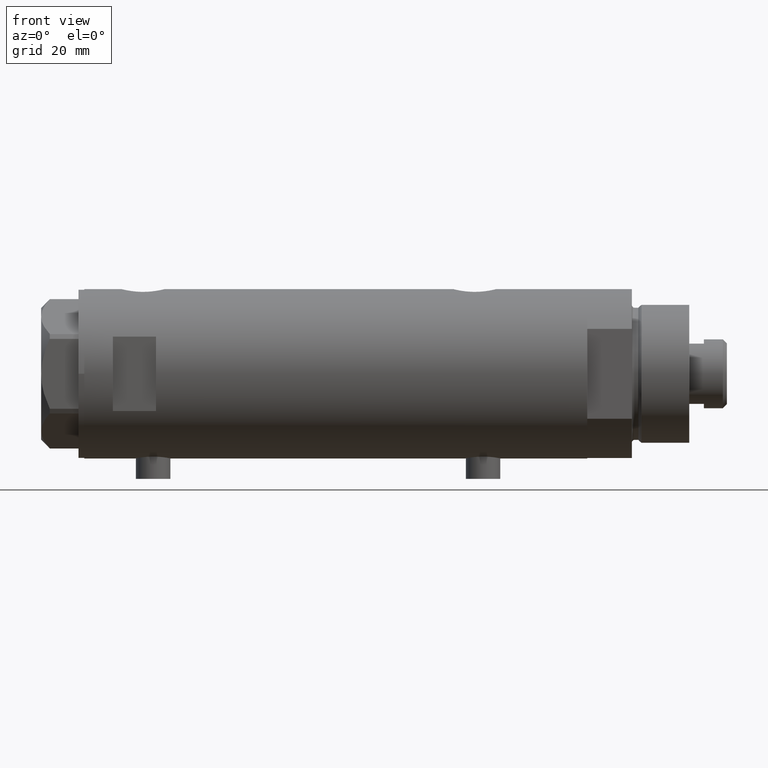
[diagram: clean part render]
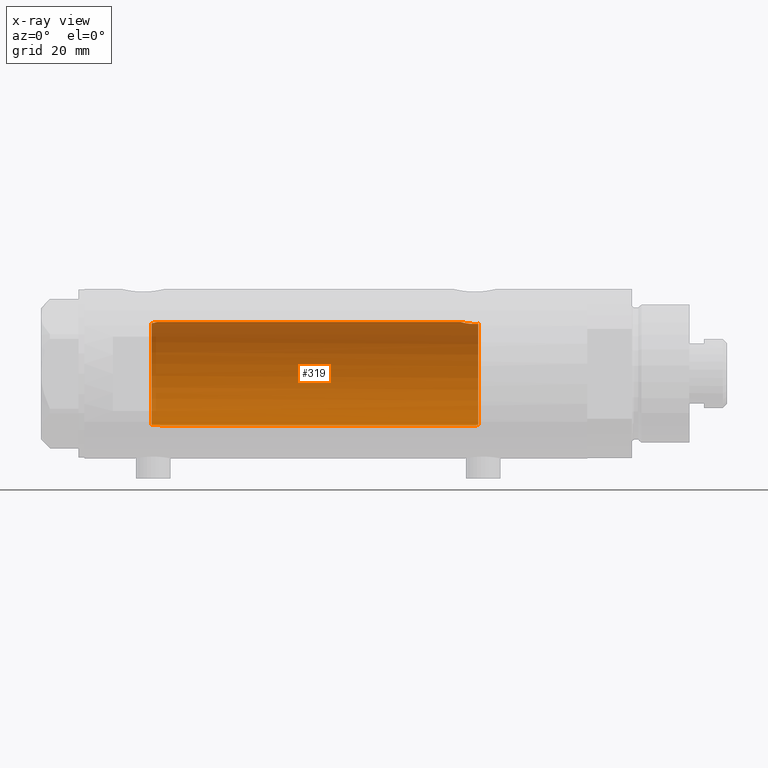
[diagram: x-ray — body ghosted, one internal face saturated and labeled with its STEP entity id]
A machine part, front view, then the same camera in x-ray: the body is ghosted and one INTERNAL B-rep face — a face not visible from any outside direction — is saturated and labeled: STEP entity #319.
In plain terms, the highlighted cylindrical surface (partial cylindrical patch) has radius 18 mm, axis along (1, 0, -0).
Its self-contained STEP definition (entity closure, byte-faithful):
#37 = CARTESIAN_POINT ( 'NONE',  ( 17.85236636886078543, 2.306694554785105211, -44.11264586133010113 ) ) ;
#91 = CARTESIAN_POINT ( 'NONE',  ( 17.68656644271517919, 3.347025706529862088, -44.86453774950911821 ) ) ;
#101 = DIRECTION ( 'NONE',  ( -1.000000000000000000, 0.000000000000000000, 0.000000000000000000 ) ) ;
#106 = ORIENTED_EDGE ( 'NONE', *, *, #968, .T. ) ;
#145 = CARTESIAN_POINT ( 'NONE',  ( 17.34671983132639284, 4.806279138776325510, -49.24012329268315113 ) ) ;
#192 = CARTESIAN_POINT ( 'NONE',  ( -17.92135699193088527, 1.687027558082471179, 61.74588287565641309 ) ) ;
#246 = CARTESIAN_POINT ( 'NONE',  ( 0.000000000000000000, 0.000000000000000000, 64.09999999999999432 ) ) ;
#271 = ORIENTED_EDGE ( 'NONE', *, *, #3130, .F. ) ;
#294 = AXIS2_PLACEMENT_3D ( 'NONE', #246, #3569, #1719 ) ;
#319 = ADVANCED_FACE ( 'NONE', ( #3716 ), #852, .F. ) ;
#346 = CARTESIAN_POINT ( 'NONE',  ( 0.000000000000000000, 0.000000000000000000, -49.60000000000000853 ) ) ;
#440 = CIRCLE ( 'NONE', #294, 18.00000000000000000 ) ;
#500 = VERTEX_POINT ( 'NONE', #3886 ) ;
#502 = CARTESIAN_POINT ( 'NONE',  ( -17.94624864476198312, 1.397590066628586314, 61.51900161024212821 ) ) ;
#532 = CARTESIAN_POINT ( 'NONE',  ( -17.82508408272473233, 2.503276281002373427, 63.73510831259079623 ) ) ;
#564 = CARTESIAN_POINT ( 'NONE',  ( 17.83158514913445103, 2.461498934476294309, 62.89965995681274791 ) ) ;
#598 = CARTESIAN_POINT ( 'NONE',  ( -17.90642342847950275, 1.833030277983155099, -49.59999999999931930 ) ) ;
#719 = CARTESIAN_POINT ( 'NONE',  ( -17.98949107760678245, 0.6899666364176350042, -48.87303358989280611 ) ) ;
#746 = AXIS2_PLACEMENT_3D ( 'NONE', #346, #2206, #3672 ) ;
#770 = EDGE_LOOP ( 'NONE', ( #2657, #3530, #106, #4354, #1308, #4041, #3641, #271 ) ) ;
#789 = CARTESIAN_POINT ( 'NONE',  ( 17.32928165965087786, 4.867855194001447394, -48.31899018256648759 ) ) ;
#810 = CARTESIAN_POINT ( 'NONE',  ( 17.41328271218089441, 4.558641711475909020, -46.69087254718662194 ) ) ;
#839 = CARTESIAN_POINT ( 'NONE',  ( 17.91189082287941048, 1.809824880389074186, -43.86912370284668583 ) ) ;
#851 = CARTESIAN_POINT ( 'NONE',  ( 17.85293122918850628, 2.302201220737751353, 62.81031080804813627 ) ) ;
#852 = CYLINDRICAL_SURFACE ( 'NONE', #1291, 18.00000000000000000 ) ;
#917 = CARTESIAN_POINT ( 'NONE',  ( -17.99999999999999645, 0.3684436523298860733, 61.09999999999998721 ) ) ;
#950 = VERTEX_POINT ( 'NONE', #4191 ) ;
#968 = EDGE_CURVE ( 'NONE', #500, #2222, #440, .T. ) ;
#988 = VERTEX_POINT ( 'NONE', #1251 ) ;
#1023 = LINE ( 'NONE', #3577, #2204 ) ;
#1043 = B_SPLINE_CURVE_WITH_KNOTS ( 'NONE', 3,
 ( #1086, #3658, #2562, #1833, #4039, #719, #3320, #4718 ),
 .UNSPECIFIED., .F., .F.,
 ( 4, 2, 2, 4 ),
 ( 0.01360098575045321639, 0.01411306367951527599, 0.01462514160857733558, 0.01564929746670145477 ),
 .UNSPECIFIED. ) ;
#1086 = CARTESIAN_POINT ( 'NONE',  ( -17.90642342847950275, 1.833030277983155099, -49.59999999999931930 ) ) ;
#1215 = CARTESIAN_POINT ( 'NONE',  ( 17.76196254920471773, 2.921230608637936488, 63.20535341986155231 ) ) ;
#1251 = CARTESIAN_POINT ( 'NONE',  ( -18.00000000000000000, 3.061617490159550962E-16, 61.09999999999999432 ) ) ;
#1255 = CARTESIAN_POINT ( 'NONE',  ( -17.83255450012700649, 2.449489742783172996, 64.09999999999999432 ) ) ;
#1278 = CARTESIAN_POINT ( 'NONE',  ( -17.82614870471583757, 2.495683684402662639, 63.36291490437700702 ) ) ;
#1291 = AXIS2_PLACEMENT_3D ( 'NONE', #3005, #3452, #101 ) ;
#1308 = ORIENTED_EDGE ( 'NONE', *, *, #1655, .T. ) ;
#1467 = CARTESIAN_POINT ( 'NONE',  ( -17.83255450012700649, 2.449489742783172996, 64.09999999999999432 ) ) ;
#1513 = CARTESIAN_POINT ( 'NONE',  ( 18.00000000000000711, 0.1844036484100906870, -43.53500000000000369 ) ) ;
#1592 = CARTESIAN_POINT ( 'NONE',  ( 17.49030773641653624, 4.256160900234555733, -46.01469509681788139 ) ) ;
#1605 = CARTESIAN_POINT ( 'NONE',  ( 17.78617492856929516, 2.770629413254889872, 63.09682049650068336 ) ) ;
#1621 = CARTESIAN_POINT ( 'NONE',  ( 17.71174132276682656, 3.211689381115078401, -44.74121359250871421 ) ) ;
#1635 = CARTESIAN_POINT ( 'NONE',  ( 18.00000000000000000, 0.3728474842072339035, 62.23499999999998522 ) ) ;
#1655 = EDGE_CURVE ( 'NONE', #988, #3909, #1023, .T. ) ;
#1695 = CARTESIAN_POINT ( 'NONE',  ( -17.95816418424195859, 1.237771781631971102, 61.42014148713399635 ) ) ;
#1719 = DIRECTION ( 'NONE',  ( 1.000000000000000000, 0.000000000000000000, 0.000000000000000000 ) ) ;
#1741 = CARTESIAN_POINT ( 'NONE',  ( 18.00000000000000000, 0.000000000000000000, 62.23499999999999233 ) ) ;
#1833 = CARTESIAN_POINT ( 'NONE',  ( -17.95286768021396639, 1.309280107997290887, -49.16336257470372573 ) ) ;
#1877 = CARTESIAN_POINT ( 'NONE',  ( 17.76085061188611292, 2.927954048074872695, -44.51043039029094928 ) ) ;
#1899 = CARTESIAN_POINT ( 'NONE',  ( 17.99716691696285764, 0.3685254503903831469, -43.54545042928660337 ) ) ;
#1930 = CARTESIAN_POINT ( 'NONE',  ( 17.61032289555864594, 3.726910670425184868, -45.26756985850234116 ) ) ;
#1976 = CARTESIAN_POINT ( 'NONE',  ( 17.35631116859820011, 4.771043568525138667, -47.39667740918693539 ) ) ;
#2039 = CARTESIAN_POINT ( 'NONE',  ( 17.95540531162507492, 1.279032093992329200, 62.40250861430339313 ) ) ;
#2051 = CARTESIAN_POINT ( 'NONE',  ( -18.00000000000000000, 3.061617490159550962E-16, 61.09999999999999432 ) ) ;
#2059 = CARTESIAN_POINT ( 'NONE',  ( 17.89217382667230893, 1.974183297225214906, 62.64981302266166097 ) ) ;
#2143 = CARTESIAN_POINT ( 'NONE',  ( -18.00000000000000000, 0.000000000000000000, -48.79999999999999716 ) ) ;
#2204 = VECTOR ( 'NONE', #2522, 1000.000000000000000 ) ;
#2206 = DIRECTION ( 'NONE',  ( 0.000000000000000000, 0.000000000000000000, -1.000000000000000000 ) ) ;
#2222 = VERTEX_POINT ( 'NONE', #1467 ) ;
#2263 = CARTESIAN_POINT ( 'NONE',  ( 17.43128843254318028, 4.489613141718953315, -46.51700003713170162 ) ) ;
#2285 = CARTESIAN_POINT ( 'NONE',  ( 17.33262691996382188, 4.855935766715061774, -48.87488940890204958 ) ) ;
#2339 = CARTESIAN_POINT ( 'NONE',  ( -17.82958311517957739, 2.471426257451371900, 63.18046645260449878 ) ) ;
#2353 = VERTEX_POINT ( 'NONE', #598 ) ;
#2363 = CARTESIAN_POINT ( 'NONE',  ( -17.98790814410162042, 0.7389993272946820957, 61.18352974933830524 ) ) ;
#2403 = CARTESIAN_POINT ( 'NONE',  ( 17.58783030962034033, 3.829911878881809173, 64.09999999999999432 ) ) ;
#2454 = VECTOR ( 'NONE', #2532, 1000.000000000000000 ) ;
#2503 = EDGE_CURVE ( 'NONE', #2353, #4649, #4307, .T. ) ;
#2522 = DIRECTION ( 'NONE',  ( -0.000000000000000000, -0.000000000000000000, -1.000000000000000000 ) ) ;
#2532 = DIRECTION ( 'NONE',  ( -0.000000000000000000, -0.000000000000000000, -1.000000000000000000 ) ) ;
#2541 = CARTESIAN_POINT ( 'NONE',  ( 17.37157951943345680, 4.714681855650495912, -49.60000000000000853 ) ) ;
#2562 = CARTESIAN_POINT ( 'NONE',  ( -17.93028482699292425, 1.588885888720747763, -49.36224988169318095 ) ) ;
#2564 = EDGE_CURVE ( 'NONE', #3088, #950, #4411, .T. ) ;
#2635 = CARTESIAN_POINT ( 'NONE',  ( 17.97733715731491344, 0.9209699998971194734, -43.61935966604426085 ) ) ;
#2657 = ORIENTED_EDGE ( 'NONE', *, *, #2564, .F. ) ;
#2721 = CARTESIAN_POINT ( 'NONE',  ( 17.94167814235965963, 1.458276351914868485, 62.45504464479717655 ) ) ;
#2783 = CARTESIAN_POINT ( 'NONE',  ( -17.82749843654113775, 2.486298441295534456, 63.91967494109755421 ) ) ;
#2790 = CARTESIAN_POINT ( 'NONE',  ( 17.98843015915092280, 0.7391836159806511874, 62.27731130524777114 ) ) ;
#2954 = EDGE_CURVE ( 'NONE', #500, #3088, #3204, .T. ) ;
#2994 = CARTESIAN_POINT ( 'NONE',  ( 17.53642083926971296, 4.065376572064634431, -45.70260027543616843 ) ) ;
#3005 = CARTESIAN_POINT ( 'NONE',  ( 0.000000000000000000, 0.000000000000000000, 87.59999999999998010 ) ) ;
#3084 = B_SPLINE_CURVE_WITH_KNOTS ( 'NONE', 3,
 ( #2051, #917, #2363, #1695, #502, #192, #3852, #4259, #4162, #4568, #3171, #2339, #1278, #532, #2783, #1255 ),
 .UNSPECIFIED., .F., .F.,
 ( 4, 2, 2, 2, 2, 2, 2, 4 ),
 ( 0.007825597788866827872, 0.008929372539743359038, 0.009481259915181620285, 0.01003314729061988327, 0.01058503466605814451, 0.01113692204149640749, 0.01168880941693466874, 0.01224069679237292999 ),
 .UNSPECIFIED. ) ;
#3088 = VERTEX_POINT ( 'NONE', #1741 ) ;
#3096 = CARTESIAN_POINT ( 'NONE',  ( 17.98587882862718601, 0.7362002489460848231, -43.58746722239207116 ) ) ;
#3130 = EDGE_CURVE ( 'NONE', #950, #4649, #4195, .T. ) ;
#3171 = CARTESIAN_POINT ( 'NONE',  ( -17.84158955897572341, 2.383204526717100258, 62.82263758307625778 ) ) ;
#3204 = B_SPLINE_CURVE_WITH_KNOTS ( 'NONE', 3,
 ( #2403, #4217, #3885, #1215, #1605, #564, #851, #2059, #3482, #2721, #2039, #2790, #1635, #3524 ),
 .UNSPECIFIED., .F., .F.,
 ( 4, 2, 2, 2, 2, 2, 4 ),
 ( 0.02614985543880328847, 0.02725214354003948486, 0.02780328759065756744, 0.02835443164127565002, 0.02890557569189373607, 0.02945671974251181865, 0.03055900784374798729 ),
 .UNSPECIFIED. ) ;
#3320 = CARTESIAN_POINT ( 'NONE',  ( -18.00000000000000000, 0.3463326441765504637, -48.80000000000000426 ) ) ;
#3362 = CARTESIAN_POINT ( 'NONE',  ( 17.94405978035183935, 1.463580074031385791, -43.74553017623723861 ) ) ;
#3393 = CARTESIAN_POINT ( 'NONE',  ( 17.33118376015916340, 4.861110225087387882, -48.13112109378173642 ) ) ;
#3440 = CARTESIAN_POINT ( 'NONE',  ( 17.38237957915196930, 4.675094569549008483, -47.04138980228257338 ) ) ;
#3452 = DIRECTION ( 'NONE',  ( -0.000000000000000000, -0.000000000000000000, -1.000000000000000000 ) ) ;
#3482 = CARTESIAN_POINT ( 'NONE',  ( 17.91007218376326904, 1.805463612197654388, 62.57866376881662518 ) ) ;
#3524 = CARTESIAN_POINT ( 'NONE',  ( 18.00000000000000000, 0.000000000000000000, 62.23499999999999233 ) ) ;
#3530 = ORIENTED_EDGE ( 'NONE', *, *, #2954, .F. ) ;
#3569 = DIRECTION ( 'NONE',  ( 0.000000000000000000, 0.000000000000000000, 1.000000000000000000 ) ) ;
#3577 = CARTESIAN_POINT ( 'NONE',  ( -18.00000000000000000, 0.000000000000000000, 87.59999999999998010 ) ) ;
#3604 = CARTESIAN_POINT ( 'NONE',  ( 18.00000000000000000, 2.204364238465235428E-15, 87.59999999999998010 ) ) ;
#3641 = ORIENTED_EDGE ( 'NONE', *, *, #2503, .T. ) ;
#3658 = CARTESIAN_POINT ( 'NONE',  ( -17.91832049203241439, 1.716810780632727962, -49.47468596615660630 ) ) ;
#3672 = DIRECTION ( 'NONE',  ( -1.000000000000000000, 0.000000000000000000, 0.000000000000000000 ) ) ;
#3716 = FACE_OUTER_BOUND ( 'NONE', #770, .T. ) ;
#3719 = EDGE_CURVE ( 'NONE', #988, #2222, #3084, .T. ) ;
#3747 = CARTESIAN_POINT ( 'NONE',  ( 17.34085862114803689, 4.826483754267691495, -47.76145238513613123 ) ) ;
#3825 = CARTESIAN_POINT ( 'NONE',  ( 18.00000000000000000, 5.958021437579254357E-16, -43.53499999999999659 ) ) ;
#3851 = CARTESIAN_POINT ( 'NONE',  ( 17.83051055968251930, 2.469307448774140212, -44.20420614498793555 ) ) ;
#3852 = CARTESIAN_POINT ( 'NONE',  ( -17.90830209998921063, 1.818440982043825649, 61.87434744171714129 ) ) ;
#3885 = CARTESIAN_POINT ( 'NONE',  ( 17.68814035493780068, 3.348626323852635700, 63.55183600219628204 ) ) ;
#3886 = CARTESIAN_POINT ( 'NONE',  ( 17.58783030962034033, 3.829911878881809173, 64.09999999999999432 ) ) ;
#3909 = VERTEX_POINT ( 'NONE', #2143 ) ;
#4039 = CARTESIAN_POINT ( 'NONE',  ( -17.96336505771914460, 1.158437137172629194, -49.07804627005671705 ) ) ;
#4041 = ORIENTED_EDGE ( 'NONE', *, *, #4667, .F. ) ;
#4111 = CARTESIAN_POINT ( 'NONE',  ( 17.63589737371339439, 3.604488512479874895, -45.12742655266252711 ) ) ;
#4162 = CARTESIAN_POINT ( 'NONE',  ( -17.87088460660653766, 2.153683778660669734, 62.31724841463822884 ) ) ;
#4188 = CARTESIAN_POINT ( 'NONE',  ( 17.78478726694684653, 2.779555353823087938, -44.40297143050466389 ) ) ;
#4191 = CARTESIAN_POINT ( 'NONE',  ( 18.00000000000000000, 5.958021437579254357E-16, -43.53499999999999659 ) ) ;
#4195 = B_SPLINE_CURVE_WITH_KNOTS ( 'NONE', 3,
 ( #3825, #1513, #1899, #3096, #2635, #3362, #839, #37, #3851, #4188, #1877, #1621, #91, #4111, #1930, #2994, #1592, #2263, #810, #3440, #1976, #3747, #3393, #789, #2285, #145, #4471 ),
 .UNSPECIFIED., .F., .F.,
 ( 4, 2, 2, 2, 2, 2, 2, 2, 2, 2, 1, 2, 2, 4 ),
 ( 0.01528157848519461244, 0.01583467956029641771, 0.01638778063539822472, 0.01749398278560184219, 0.01804708386070364920, 0.01860018493580545967, 0.01915328601090726668, 0.01970638708600907368, 0.02081258923621269116, 0.02136569031131448776, 0.02191879138641628783, 0.02247189246151808789, 0.02302499353661988449, 0.02413119568682350197 ),
 .UNSPECIFIED. ) ;
#4217 = CARTESIAN_POINT ( 'NONE',  ( 17.63704841537101586, 3.603891093161665449, 63.81145343596537600 ) ) ;
#4259 = CARTESIAN_POINT ( 'NONE',  ( -17.88283752013080274, 2.053809615874003125, 62.16247768058086365 ) ) ;
#4307 = CIRCLE ( 'NONE', #746, 18.00000000000000000 ) ;
#4354 = ORIENTED_EDGE ( 'NONE', *, *, #3719, .F. ) ;
#4411 = LINE ( 'NONE', #3604, #2454 ) ;
#4471 = CARTESIAN_POINT ( 'NONE',  ( 17.37157951943345680, 4.714681855650495912, -49.60000000000000853 ) ) ;
#4568 = CARTESIAN_POINT ( 'NONE',  ( -17.85029215802978086, 2.318176074868580905, 62.64613149013027993 ) ) ;
#4649 = VERTEX_POINT ( 'NONE', #2541 ) ;
#4667 = EDGE_CURVE ( 'NONE', #2353, #3909, #1043, .T. ) ;
#4718 = CARTESIAN_POINT ( 'NONE',  ( -18.00000000000000000, 0.000000000000000000, -48.79999999999999716 ) ) ;